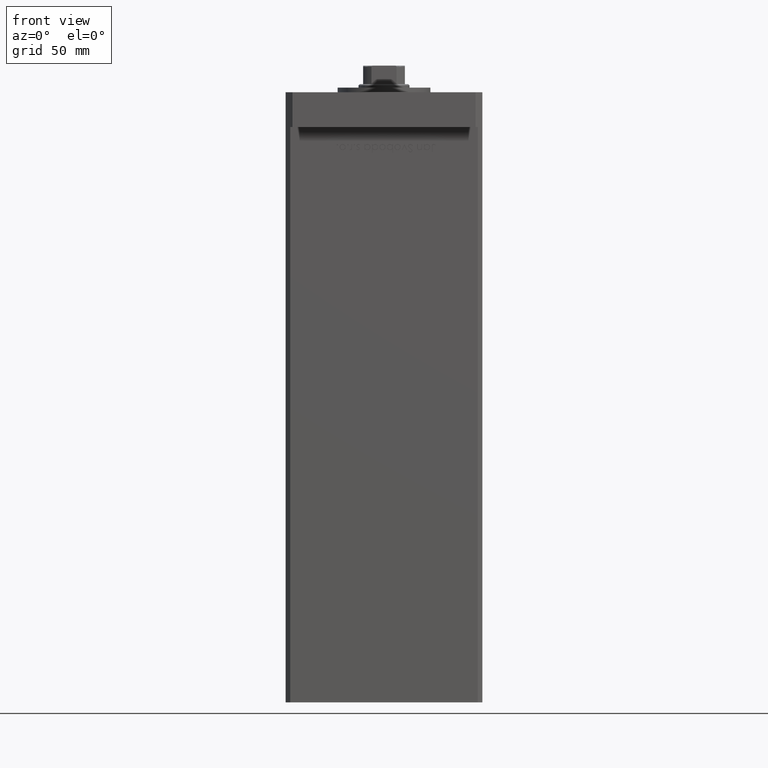
[diagram: clean part render]
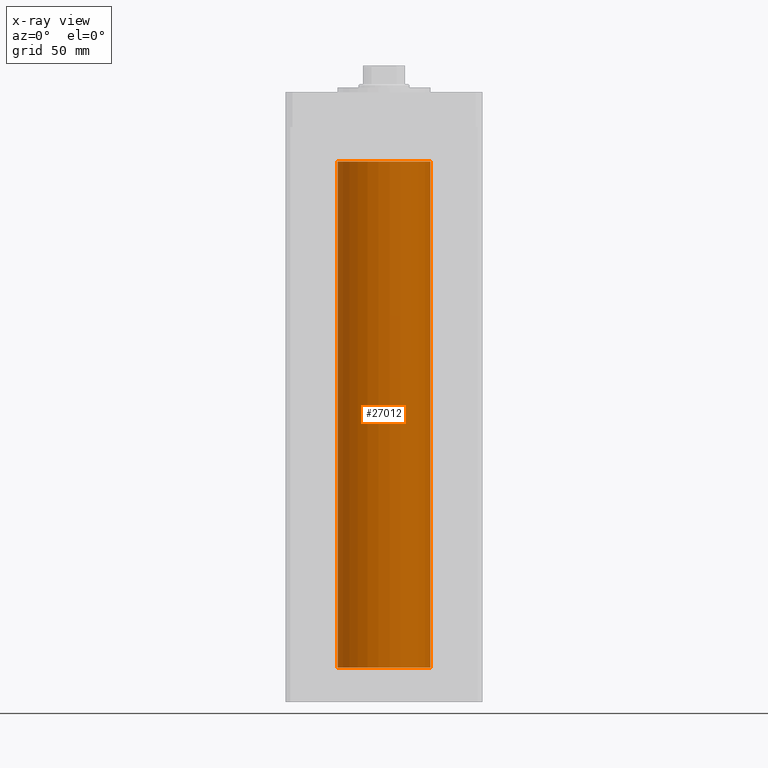
[diagram: x-ray — body ghosted, one internal face saturated and labeled with its STEP entity id]
A machine part, front view, then the same camera in x-ray: the body is ghosted and one INTERNAL B-rep face — a face not visible from any outside direction — is saturated and labeled: STEP entity #27012.
In plain terms, the highlighted cylindrical surface (partial cylindrical patch) has radius 20 mm, axis along (-0, -0, -1).
Its self-contained STEP definition (entity closure, byte-faithful):
#343 = EDGE_CURVE ( 'NONE', #35620, #33518, #49686, .T. ) ;
#1778 = CARTESIAN_POINT ( 'NONE',  ( 20.00000000000000000, 2.449293598294706513E-15, 218.5000000000000000 ) ) ;
#2673 = LINE ( 'NONE', #47935, #5140 ) ;
#3703 = VERTEX_POINT ( 'NONE', #30211 ) ;
#3882 = DIRECTION ( 'NONE',  ( -0.000000000000000000, 0.000000000000000000, 1.000000000000000000 ) ) ;
#4053 = EDGE_CURVE ( 'NONE', #33518, #15709, #26750, .T. ) ;
#4064 = DIRECTION ( 'NONE',  ( 1.000000000000000000, 0.000000000000000000, 0.000000000000000000 ) ) ;
#5140 = VECTOR ( 'NONE', #23802, 1000.000000000000000 ) ;
#5610 = DIRECTION ( 'NONE',  ( -0.000000000000000000, -0.000000000000000000, -1.000000000000000000 ) ) ;
#9682 = EDGE_LOOP ( 'NONE', ( #30342, #33724, #31339, #20032 ) ) ;
#15093 = CARTESIAN_POINT ( 'NONE',  ( -20.00000000000000000, 0.000000000000000000, 218.5000000000000000 ) ) ;
#15709 = VERTEX_POINT ( 'NONE', #19714 ) ;
#17594 = EDGE_CURVE ( 'NONE', #35620, #3703, #2673, .T. ) ;
#17597 = AXIS2_PLACEMENT_3D ( 'NONE', #47295, #52641, #22080 ) ;
#19714 = CARTESIAN_POINT ( 'NONE',  ( 20.00000000000000000, 2.449293598294706513E-15, 0.000000000000000000 ) ) ;
#19896 = CARTESIAN_POINT ( 'NONE',  ( 0.000000000000000000, 0.000000000000000000, 218.5000000000000000 ) ) ;
#20032 = ORIENTED_EDGE ( 'NONE', *, *, #17594, .F. ) ;
#20872 = DIRECTION ( 'NONE',  ( -0.000000000000000000, 0.000000000000000000, 1.000000000000000000 ) ) ;
#22080 = DIRECTION ( 'NONE',  ( -1.000000000000000000, 0.000000000000000000, 0.000000000000000000 ) ) ;
#23802 = DIRECTION ( 'NONE',  ( -0.000000000000000000, -0.000000000000000000, -1.000000000000000000 ) ) ;
#26750 = LINE ( 'NONE', #43297, #38536 ) ;
#27012 = ADVANCED_FACE ( 'NONE', ( #51348 ), #36086, .F. ) ;
#28727 = CARTESIAN_POINT ( 'NONE',  ( 0.000000000000000000, 0.000000000000000000, 0.000000000000000000 ) ) ;
#30211 = CARTESIAN_POINT ( 'NONE',  ( -20.00000000000000000, 0.000000000000000000, 0.000000000000000000 ) ) ;
#30342 = ORIENTED_EDGE ( 'NONE', *, *, #343, .T. ) ;
#31339 = ORIENTED_EDGE ( 'NONE', *, *, #49352, .F. ) ;
#32372 = AXIS2_PLACEMENT_3D ( 'NONE', #19896, #3882, #48894 ) ;
#33518 = VERTEX_POINT ( 'NONE', #1778 ) ;
#33724 = ORIENTED_EDGE ( 'NONE', *, *, #4053, .T. ) ;
#35620 = VERTEX_POINT ( 'NONE', #15093 ) ;
#36086 = CYLINDRICAL_SURFACE ( 'NONE', #17597, 20.00000000000000000 ) ;
#38536 = VECTOR ( 'NONE', #5610, 1000.000000000000000 ) ;
#39457 = AXIS2_PLACEMENT_3D ( 'NONE', #28727, #20872, #4064 ) ;
#41160 = CIRCLE ( 'NONE', #39457, 20.00000000000000000 ) ;
#43297 = CARTESIAN_POINT ( 'NONE',  ( 20.00000000000000000, 2.449293598294706513E-15, 218.5000000000000000 ) ) ;
#47295 = CARTESIAN_POINT ( 'NONE',  ( 0.000000000000000000, 0.000000000000000000, 218.5000000000000000 ) ) ;
#47935 = CARTESIAN_POINT ( 'NONE',  ( -20.00000000000000000, 0.000000000000000000, 218.5000000000000000 ) ) ;
#48894 = DIRECTION ( 'NONE',  ( 1.000000000000000000, 0.000000000000000000, 0.000000000000000000 ) ) ;
#49352 = EDGE_CURVE ( 'NONE', #3703, #15709, #41160, .T. ) ;
#49686 = CIRCLE ( 'NONE', #32372, 20.00000000000000000 ) ;
#51348 = FACE_OUTER_BOUND ( 'NONE', #9682, .T. ) ;
#52641 = DIRECTION ( 'NONE',  ( -0.000000000000000000, -0.000000000000000000, -1.000000000000000000 ) ) ;